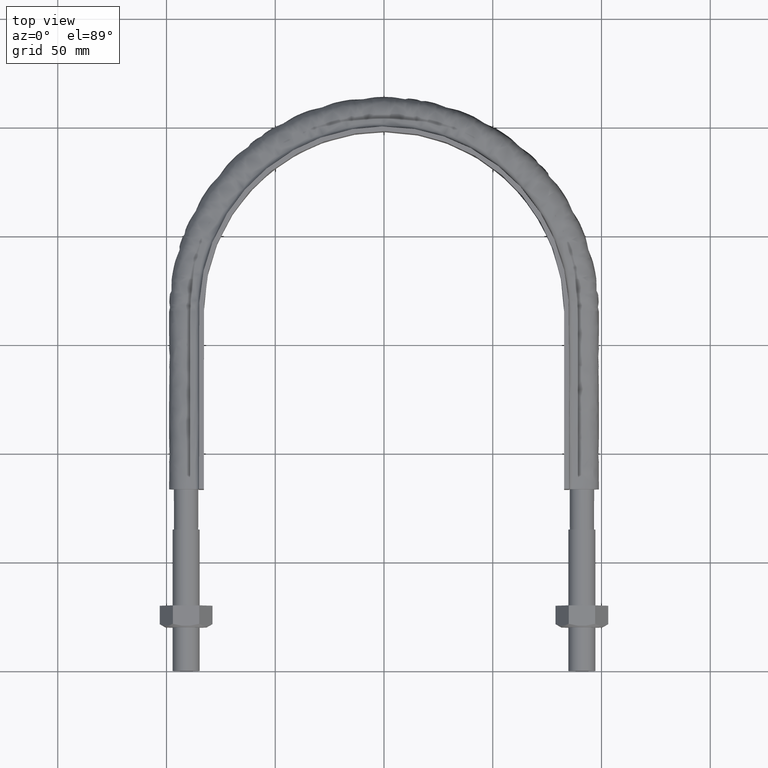
[diagram: clean part render]
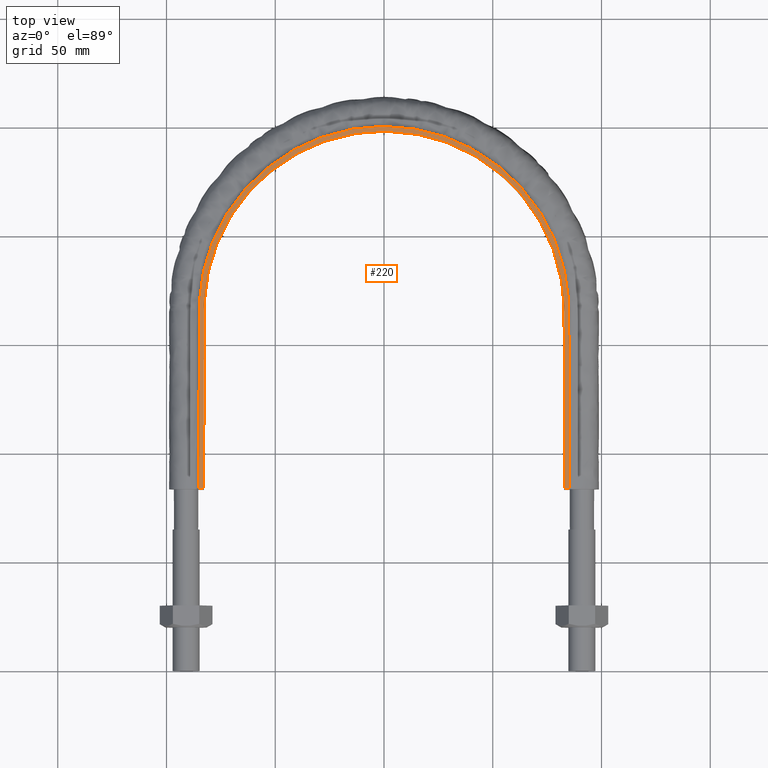
[diagram: same view with one face highlighted and labeled with its STEP entity id]
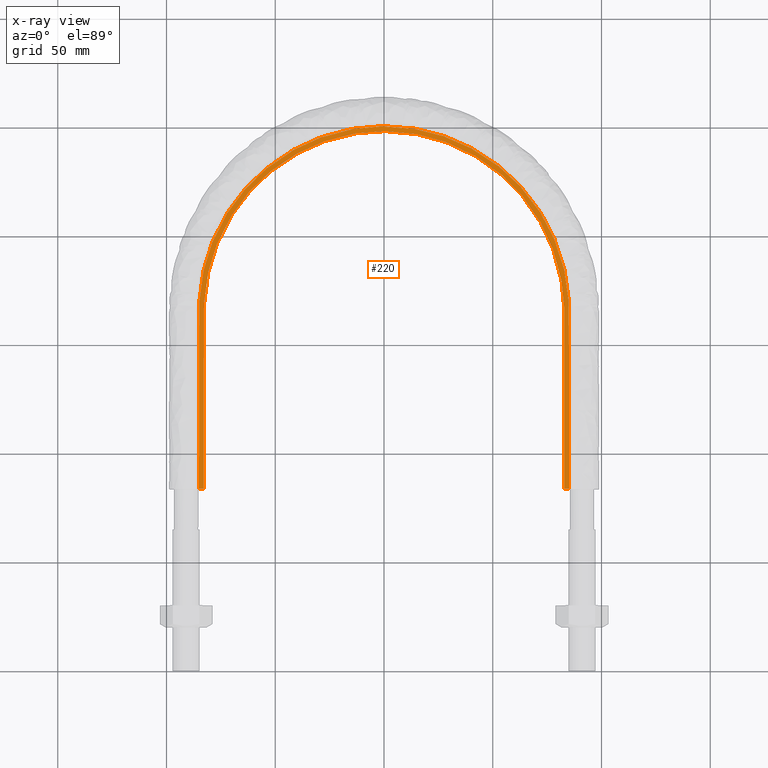
[diagram: x-ray of the same camera — body ghosted, the highlighted face saturated]
A machine part, top view. The second image highlights one B-rep face of the part: STEP entity #220.
The next image is the same camera in x-ray: the body ghosted, the highlighted face saturated — about 0% of this face is hidden behind the body in this view.
In plain terms, the highlighted planar face has unit normal (0, 0, 1).
Its self-contained STEP definition (entity closure, byte-faithful):
#220 = ADVANCED_FACE( '', ( #263 ), #264, .T. );
#263 = FACE_OUTER_BOUND( '', #365, .T. );
#264 = PLANE( '', #366 );
#365 = EDGE_LOOP( '', ( #1371, #1372, #1373, #1374 ) );
#366 = AXIS2_PLACEMENT_3D( '', #1375, #1376, #1377 );
#1371 = ORIENTED_EDGE( '', *, *, #1654, .T. );
#1372 = ORIENTED_EDGE( '', *, *, #1658, .T. );
#1373 = ORIENTED_EDGE( '', *, *, #1659, .T. );
#1374 = ORIENTED_EDGE( '', *, *, #1660, .F. );
#1375 = CARTESIAN_POINT( '', ( 150.000000000000, 383.500000000000, 15.0000000000000 ) );
#1376 = DIRECTION( '', ( 0.000000000000000, 0.000000000000000, 1.00000000000000 ) );
#1377 = DIRECTION( '', ( 1.00000000000000, 0.000000000000000, 0.000000000000000 ) );
#1654 = EDGE_CURVE( '', #1738, #1736, #1739, .T. );
#1658 = EDGE_CURVE( '', #1736, #1745, #1746, .T. );
#1659 = EDGE_CURVE( '', #1745, #1747, #1748, .T. );
#1660 = EDGE_CURVE( '', #1738, #1747, #1749, .T. );
#1736 = VERTEX_POINT( '', #1884 );
#1738 = VERTEX_POINT( '', #1887 );
#1739 = LINE( '', #1888, #1889 );
#1745 = VERTEX_POINT( '', #1936 );
#1746 = B_SPLINE_CURVE_WITH_KNOTS( '', 3, ( #1937, #1938, #1939, #1940, #1941, #1942, #1943, #1944, #1945, #1946, #1947, #1948, #1949, #1950, #1951, #1952, #1953 ), .UNSPECIFIED., .F., .F., ( 4, 3, 1, 1, 1, 1, 1, 1, 1, 3, 4 ), ( -10.0000000000000, -9.00000000000000, -8.00000000000000, -7.00000000000000, -6.00000000000000, -5.00000000000000, -4.00000000000000, -3.00000000000000, -2.00000000000000, -1.00000000000000, 0.000000000000000 ), .UNSPECIFIED. );
#1747 = VERTEX_POINT( '', #1954 );
#1748 = LINE( '', #1955, #1956 );
#1749 = B_SPLINE_CURVE_WITH_KNOTS( '', 3, ( #1957, #1958, #1959, #1960, #1961, #1962, #1963, #1964, #1965, #1966, #1967, #1968, #1969, #1970, #1971, #1972, #1973 ), .UNSPECIFIED., .F., .F., ( 4, 3, 1, 1, 1, 1, 1, 1, 1, 3, 4 ), ( -10.0000000000000, -9.00000000000000, -8.00000000000000, -7.00000000000000, -6.00000000000000, -5.00000000000000, -4.00000000000000, -3.00000000000000, -2.00000000000000, -1.00000000000000, 0.000000000000000 ), .UNSPECIFIED. );
#1884 = CARTESIAN_POINT( '', ( -82.8499999999999, 83.5000000000003, 15.0000000000000 ) );
#1887 = CARTESIAN_POINT( '', ( -85.0499999999999, 83.5000000000003, 15.0000000000000 ) );
#1888 = CARTESIAN_POINT( '', ( -150.000000000000, 83.5000000000003, 15.0000000000000 ) );
#1889 = VECTOR( '', #2386, 1000.00000000000 );
#1936 = CARTESIAN_POINT( '', ( 82.8500000000002, 83.5000000000003, 15.0000000000000 ) );
#1937 = CARTESIAN_POINT( '', ( -82.8500000000000, 83.5000000000001, 15.0000000000000 ) );
#1938 = CARTESIAN_POINT( '', ( -82.8500000000000, 110.716666666667, 15.0000000000000 ) );
#1939 = CARTESIAN_POINT( '', ( -82.8500000000000, 137.933333333333, 15.0000000000000 ) );
#1940 = CARTESIAN_POINT( '', ( -82.8500000000000, 165.150000000000, 15.0000000000000 ) );
#1941 = CARTESIAN_POINT( '', ( -82.8500000000000, 175.979512005492, 15.0000000000000 ) );
#1942 = CARTESIAN_POINT( '', ( -78.5361555605724, 197.687272457852, 15.0000000000000 ) );
#1943 = CARTESIAN_POINT( '', ( -60.1089711493570, 225.257212617967, 15.0000000000000 ) );
#1944 = CARTESIAN_POINT( '', ( -32.5307407698323, 243.686657998112, 15.0000000000000 ) );
#1945 = CARTESIAN_POINT( '', ( 5.83899204915099E-014, 250.156671000944, 15.0000000000000 ) );
#1946 = CARTESIAN_POINT( '', ( 32.5307407698323, 243.686657998112, 15.0000000000000 ) );
#1947 = CARTESIAN_POINT( '', ( 60.1089711493571, 225.257212617967, 15.0000000000000 ) );
#1948 = CARTESIAN_POINT( '', ( 78.5361555605725, 197.687272457852, 15.0000000000000 ) );
#1949 = CARTESIAN_POINT( '', ( 82.8500000000000, 175.979512005492, 15.0000000000000 ) );
#1950 = CARTESIAN_POINT( '', ( 82.8500000000000, 165.150000000000, 15.0000000000000 ) );
#1951 = CARTESIAN_POINT( '', ( 82.8500000000000, 137.933333333333, 15.0000000000000 ) );
#1952 = CARTESIAN_POINT( '', ( 82.8500000000000, 110.716666666667, 15.0000000000000 ) );
#1953 = CARTESIAN_POINT( '', ( 82.8500000000000, 83.5000000000000, 15.0000000000000 ) );
#1954 = CARTESIAN_POINT( '', ( 85.0500000000002, 83.5000000000003, 15.0000000000000 ) );
#1955 = CARTESIAN_POINT( '', ( -150.000000000000, 83.5000000000003, 15.0000000000000 ) );
#1956 = VECTOR( '', #2388, 1000.00000000000 );
#1957 = CARTESIAN_POINT( '', ( -85.0500000000000, 83.5000000000001, 15.0000000000000 ) );
#1958 = CARTESIAN_POINT( '', ( -85.0500000000000, 110.716666666667, 15.0000000000000 ) );
#1959 = CARTESIAN_POINT( '', ( -85.0500000000000, 137.933333333333, 15.0000000000000 ) );
#1960 = CARTESIAN_POINT( '', ( -85.0500000000000, 165.150000000000, 15.0000000000000 ) );
#1961 = CARTESIAN_POINT( '', ( -85.0500000000000, 176.271250144316, 15.0000000000000 ) );
#1962 = CARTESIAN_POINT( '', ( -80.6216056780529, 198.549331025117, 15.0000000000000 ) );
#1963 = CARTESIAN_POINT( '', ( -61.7051055673243, 226.853821731524, 15.0000000000000 ) );
#1964 = CARTESIAN_POINT( '', ( -33.3945624921452, 245.771972488282, 15.0000000000000 ) );
#1965 = CARTESIAN_POINT( '', ( 5.17274622156451E-014, 252.414013755859, 15.0000000000000 ) );
#1966 = CARTESIAN_POINT( '', ( 33.3945624921453, 245.771972488282, 15.0000000000000 ) );
#1967 = CARTESIAN_POINT( '', ( 61.7051055673243, 226.853821731524, 15.0000000000000 ) );
#1968 = CARTESIAN_POINT( '', ( 80.6216056780530, 198.549331025117, 15.0000000000000 ) );
#1969 = CARTESIAN_POINT( '', ( 85.0500000000000, 176.271250144316, 15.0000000000000 ) );
#1970 = CARTESIAN_POINT( '', ( 85.0500000000000, 165.150000000000, 15.0000000000000 ) );
#1971 = CARTESIAN_POINT( '', ( 85.0500000000000, 137.933333333333, 15.0000000000000 ) );
#1972 = CARTESIAN_POINT( '', ( 85.0500000000000, 110.716666666667, 15.0000000000000 ) );
#1973 = CARTESIAN_POINT( '', ( 85.0500000000000, 83.5000000000000, 15.0000000000000 ) );
#2386 = DIRECTION( '', ( 1.00000000000000, -1.22460635382238E-016, 0.000000000000000 ) );
#2388 = DIRECTION( '', ( 1.00000000000000, -1.22460635382238E-016, 0.000000000000000 ) );